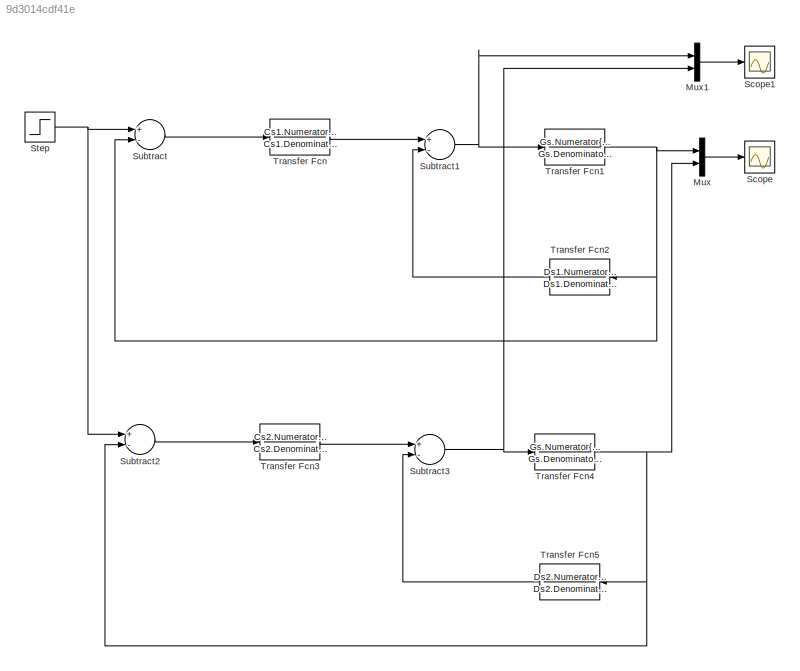
MODEL slx_9d3014cdf41e
KIND model
CONFIG AbsTol = auto
CONFIG EnableMultiTasking = off
CONFIG FixedStep = auto
CONFIG MaxStep = auto
CONFIG MinStep = auto
CONFIG RelTol = 1e-3
CONFIG SampleTimeConstraint = Unconstrained
CONFIG Solver = VariableStepAuto
CONFIG SolverName = VariableStepAuto
CONFIG StartTime = 0.0
CONFIG StopTime = 50
BLOCK [Mux] Mux
  DisplayOption = bar
  Inputs = 2
  Ports = [2, 1]
BLOCK [Mux] Mux1
  DisplayOption = bar
  Inputs = 2
  Ports = [2, 1]
BLOCK [Scope] Scope
  NumInputPorts = 1
  Ports = [1]
  ScopeSpecificationString = Simulink.scopes.TimeScopeBlockCfg('CurrentConfiguration', extmgr.ConfigurationSet(extmgr.Configuration('Core','General UI',true),extmgr.Configuration('Core','Source UI',true),extmgr.Configuration('Sources','WiredSimulink',true),extmgr.Configuration('Visuals','Time Domain',true,'SerializedDisplays',{struct('MinYLimReal','-520416.11758','MaxYLimReal','177537.00464','YLabelReal','','MinYLimMag','    ...<+1442ch>
BLOCK [Scope] Scope1
  NumInputPorts = 1
  Ports = [1]
  ScopeSpecificationString = Simulink.scopes.TimeScopeBlockCfg('CurrentConfiguration', extmgr.ConfigurationSet(extmgr.Configuration('Core','General UI',true),extmgr.Configuration('Core','Source UI',true),extmgr.Configuration('Sources','WiredSimulink',true,'DataLoggingVariableName','ScopeData1'),extmgr.Configuration('Visuals','Time Domain',true,'SerializedDisplays',{struct('MinYLimReal','-193965.7071','MaxYLimReal','573821.411...<+1471ch>
BLOCK [Step] Step
  After = 0.8
  SampleTime = 0
  Time = 0
BLOCK [Sum] Subtract
  InputSameDT = off
  Inputs = +-
  OutDataTypeStr = Inherit: Inherit via internal rule
  Ports = [2, 1]
  SaturateOnIntegerOverflow = off
BLOCK [Sum] Subtract1
  InputSameDT = off
  Inputs = +-
  OutDataTypeStr = Inherit: Inherit via internal rule
  Ports = [2, 1]
  SaturateOnIntegerOverflow = off
BLOCK [Sum] Subtract2
  InputSameDT = off
  Inputs = +-
  OutDataTypeStr = Inherit: Inherit via internal rule
  Ports = [2, 1]
  SaturateOnIntegerOverflow = off
BLOCK [Sum] Subtract3
  InputSameDT = off
  Inputs = +-
  OutDataTypeStr = Inherit: Inherit via internal rule
  Ports = [2, 1]
  SaturateOnIntegerOverflow = off
BLOCK [TransferFcn] Transfer Fcn
  Denominator = Cs1.Denominator{1,1}
  Numerator = Cs1.Numerator{1,1}
BLOCK [TransferFcn] Transfer Fcn1
  Denominator = Gs.Denominator{1,1}
  Numerator = Gs.Numerator{1,1}
BLOCK [TransferFcn] Transfer Fcn2
  Denominator = Ds1.Denominator{1,1}
  Numerator = Ds1.Numerator{1,1}
BLOCK [TransferFcn] Transfer Fcn3
  Denominator = Cs2.Denominator{1,1}
  Numerator = Cs2.Numerator{1,1}
BLOCK [TransferFcn] Transfer Fcn4
  Denominator = Gs.Denominator{1,1}
  Numerator = Gs.Numerator{1,1}
BLOCK [TransferFcn] Transfer Fcn5
  Denominator = Ds2.Denominator{1,1}
  Numerator = Ds2.Numerator{1,1}
LINE Mux1:1 -> Scope1:1
LINE Mux:1 -> Scope:1
NET Step:1 -> Subtract2:1, Subtract:1
NET Subtract1:1 -> Mux1:1, Transfer Fcn1:1
LINE Subtract2:1 -> Transfer Fcn3:1
NET Subtract3:1 -> Mux1:2, Transfer Fcn4:1
LINE Subtract:1 -> Transfer Fcn:1
NET Transfer Fcn1:1 -> Mux:1, Subtract:2, Transfer Fcn2:1
LINE Transfer Fcn2:1 -> Subtract1:2
LINE Transfer Fcn3:1 -> Subtract3:1
NET Transfer Fcn4:1 -> Mux:2, Subtract2:2, Transfer Fcn5:1
LINE Transfer Fcn5:1 -> Subtract3:2
LINE Transfer Fcn:1 -> Subtract1:1
note: NET lines group one-source signal fan-out (src -> all destinations, sorted); 1:1 wires keep LINE
